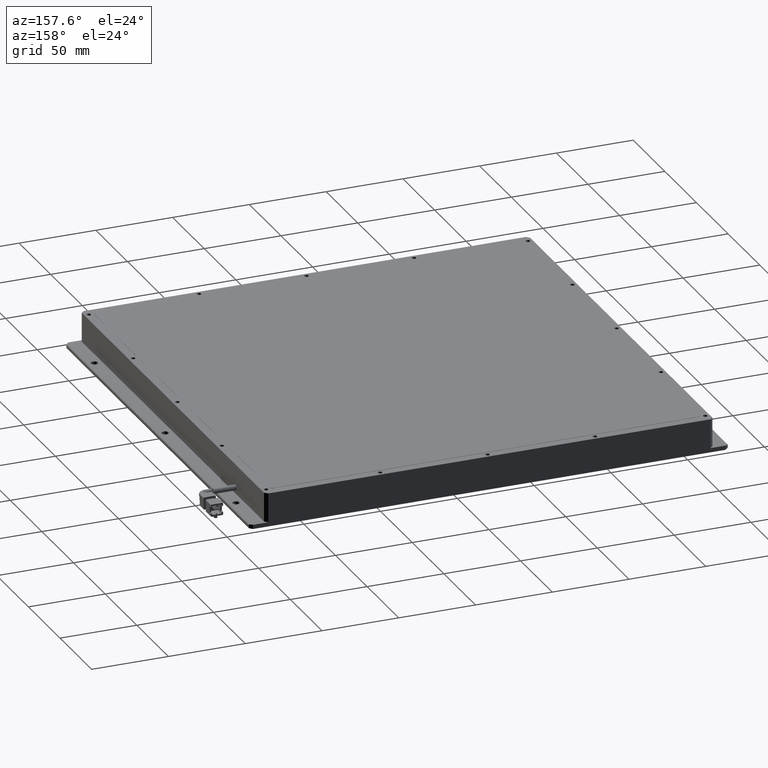
[diagram: clean part render]
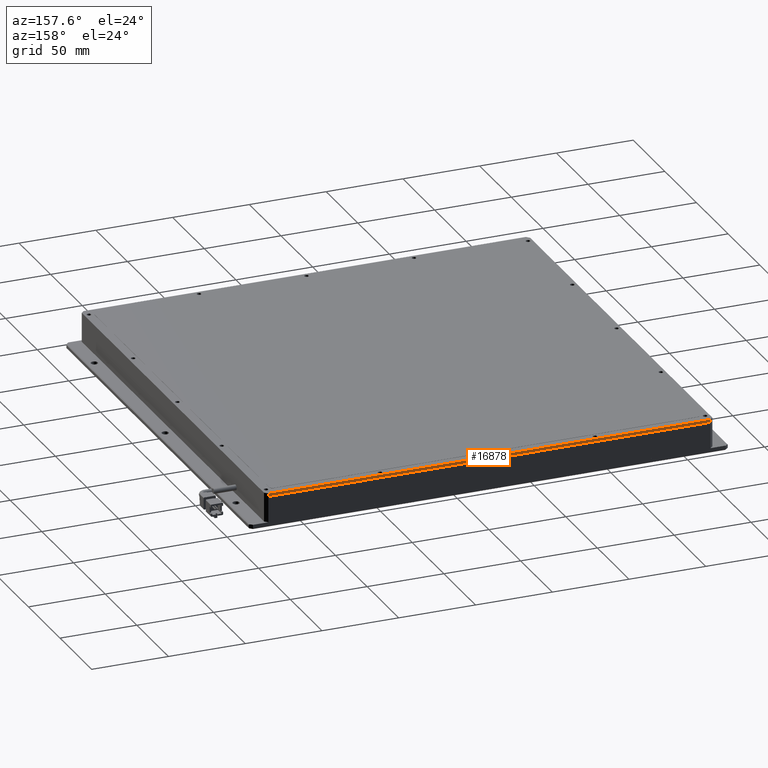
[diagram: same view with one face highlighted and labeled with its STEP entity id]
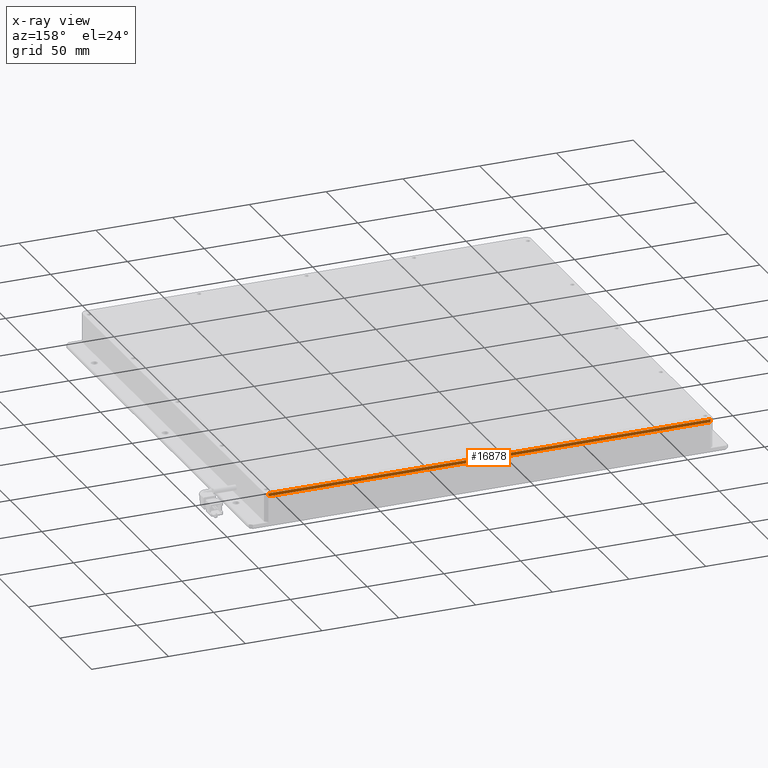
[diagram: x-ray of the same camera — body ghosted, the highlighted face saturated]
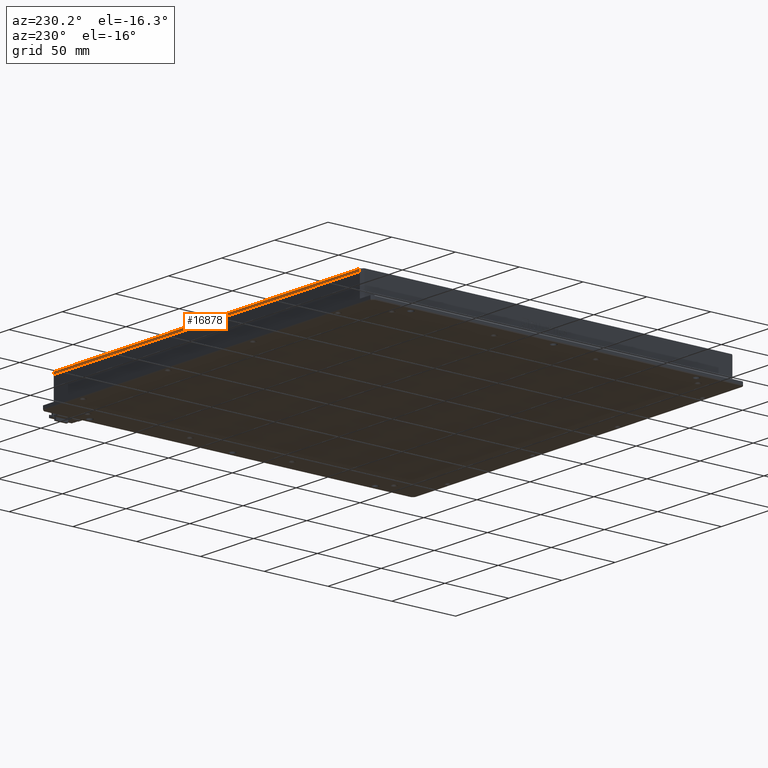
[diagram: same view with one face highlighted and labeled with its STEP entity id]
A machine part, auxiliary view. The second image highlights one B-rep face of the part: STEP entity #16878.
The next image is the same camera in x-ray: the body ghosted, the highlighted face saturated — about 0% of this face is hidden behind the body in this view.
A second angle (auxiliary view) of the same face is appended — the face is thin or edge-on in the first view.
In plain terms, the highlighted planar face has unit normal (0, -1, 0).
Its self-contained STEP definition (entity closure, byte-faithful):
#81 = CARTESIAN_POINT ( 'NONE',  ( 176.9193228736581000, 159.2698045692266100, 10.49999999997180600 ) ) ;
#88 = VERTEX_POINT ( 'NONE', #1102 ) ;
#160 = DIRECTION ( 'NONE',  ( 1.000000000000000000, 0.0000000000000000000, 0.0000000000000000000 ) ) ;
#485 = EDGE_LOOP ( 'NONE', ( #24647, #25496, #5291, #14577 ) ) ;
#1102 = CARTESIAN_POINT ( 'NONE',  ( -111.0806771263417300, 159.2698045692266100, 10.49999999997180600 ) ) ;
#2102 = EDGE_CURVE ( 'NONE', #7421, #17363, #7819, .T. ) ;
#2228 = PLANE ( 'NONE',  #22359 ) ;
#3337 = DIRECTION ( 'NONE',  ( 0.0000000000000000000, 0.0000000000000000000, 1.000000000000000000 ) ) ;
#4545 = LINE ( 'NONE', #21701, #21052 ) ;
#5291 = ORIENTED_EDGE ( 'NONE', *, *, #2102, .T. ) ;
#7421 = VERTEX_POINT ( 'NONE', #25759 ) ;
#7671 = LINE ( 'NONE', #23834, #16460 ) ;
#7819 = LINE ( 'NONE', #18525, #12943 ) ;
#7835 = DIRECTION ( 'NONE',  ( -1.000000000000000000, -0.0000000000000000000, -0.0000000000000000000 ) ) ;
#8552 = EDGE_CURVE ( 'NONE', #17363, #88, #11821, .T. ) ;
#8803 = DIRECTION ( 'NONE',  ( -1.000000000000000000, -0.0000000000000000000, -0.0000000000000000000 ) ) ;
#11123 = VECTOR ( 'NONE', #3337, 1000.000000000000000 ) ;
#11821 = LINE ( 'NONE', #18311, #11123 ) ;
#12652 = EDGE_CURVE ( 'NONE', #7421, #20970, #7671, .T. ) ;
#12943 = VECTOR ( 'NONE', #7835, 1000.000000000000000 ) ;
#13065 = DIRECTION ( 'NONE',  ( 0.0000000000000000000, -1.000000000000000000, 0.0000000000000000000 ) ) ;
#14577 = ORIENTED_EDGE ( 'NONE', *, *, #8552, .T. ) ;
#15366 = CARTESIAN_POINT ( 'NONE',  ( -111.0806771263417300, 159.2698045692266100, 8.499999999971805700 ) ) ;
#16460 = VECTOR ( 'NONE', #17493, 1000.000000000000000 ) ;
#16878 = ADVANCED_FACE ( 'NONE', ( #24905 ), #2228, .F. ) ;
#17363 = VERTEX_POINT ( 'NONE', #15366 ) ;
#17493 = DIRECTION ( 'NONE',  ( 0.0000000000000000000, 0.0000000000000000000, 1.000000000000000000 ) ) ;
#18311 = CARTESIAN_POINT ( 'NONE',  ( -111.0806771263417800, 159.2698045692266400, 10.49999999997180600 ) ) ;
#18525 = CARTESIAN_POINT ( 'NONE',  ( -113.0806771263418400, 159.2698045692266600, 8.499999999971805700 ) ) ;
#18708 = EDGE_CURVE ( 'NONE', #20970, #88, #4545, .T. ) ;
#20970 = VERTEX_POINT ( 'NONE', #81 ) ;
#21052 = VECTOR ( 'NONE', #8803, 1000.000000000000000 ) ;
#21701 = CARTESIAN_POINT ( 'NONE',  ( -113.0806771263418400, 159.2698045692265800, 10.49999999997180600 ) ) ;
#22359 = AXIS2_PLACEMENT_3D ( 'NONE', #25838, #13065, #160 ) ;
#23834 = CARTESIAN_POINT ( 'NONE',  ( 176.9193228736580700, 159.2698045692265800, 10.49999999997180600 ) ) ;
#24647 = ORIENTED_EDGE ( 'NONE', *, *, #18708, .F. ) ;
#24905 = FACE_OUTER_BOUND ( 'NONE', #485, .T. ) ;
#25496 = ORIENTED_EDGE ( 'NONE', *, *, #12652, .F. ) ;
#25759 = CARTESIAN_POINT ( 'NONE',  ( 176.9193228736581000, 159.2698045692266400, 8.499999999971805700 ) ) ;
#25838 = CARTESIAN_POINT ( 'NONE',  ( -113.0806771263418400, 159.2698045692265800, 10.49999999997180600 ) ) ;